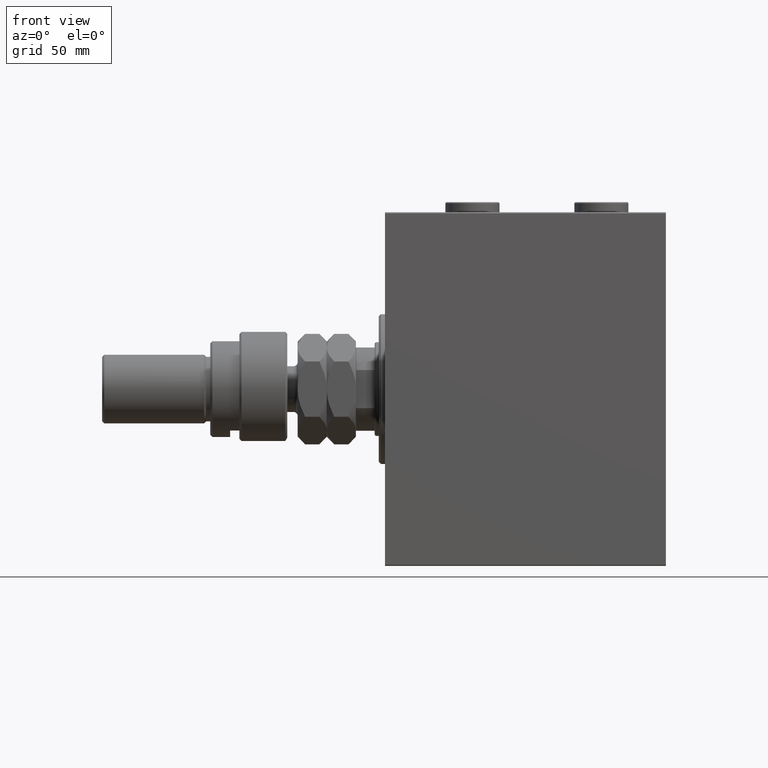
[diagram: clean part render]
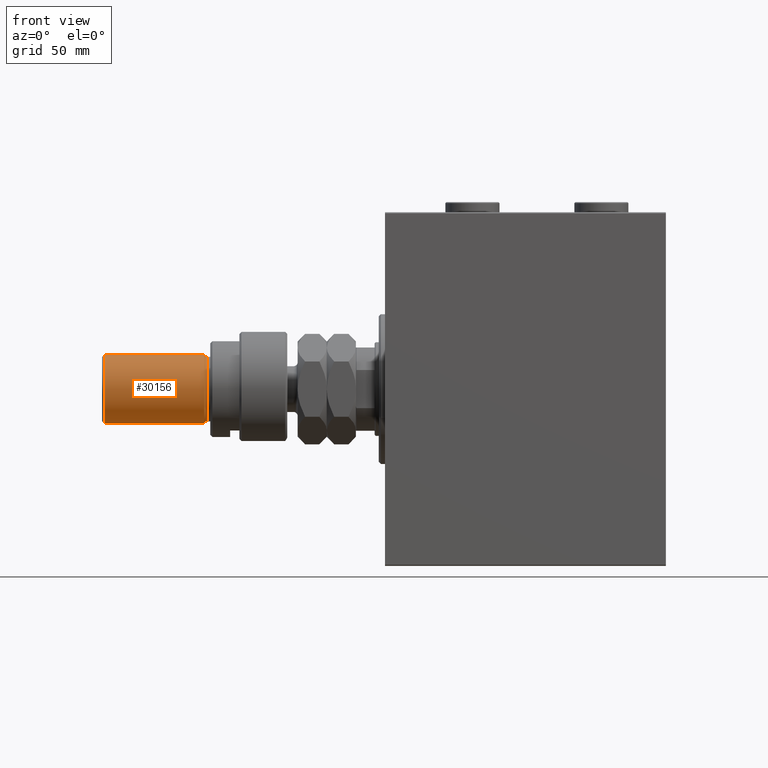
[diagram: same view with one face highlighted and labeled with its STEP entity id]
A machine part, front view. The second image highlights one B-rep face of the part: STEP entity #30156.
In plain terms, the highlighted cylindrical surface (edge-blend (fillet) strip) has radius 16.5 mm, axis along (1, -0, -0).
Its self-contained STEP definition (entity closure, byte-faithful):
#80 = CARTESIAN_POINT ( 'NONE',  ( 16.50000000000000000, 2.020667218593133100E-15, 88.00000000000001421 ) ) ;
#2913 = DIRECTION ( 'NONE',  ( 1.000000000000000000, 0.000000000000000000, 0.000000000000000000 ) ) ;
#3524 = VERTEX_POINT ( 'NONE', #8501 ) ;
#6610 = DIRECTION ( 'NONE',  ( -1.000000000000000000, 0.000000000000000000, 0.000000000000000000 ) ) ;
#6787 = CARTESIAN_POINT ( 'NONE',  ( 0.000000000000000000, 0.000000000000000000, 88.00000000000001421 ) ) ;
#8162 = ORIENTED_EDGE ( 'NONE', *, *, #43486, .T. ) ;
#8501 = CARTESIAN_POINT ( 'NONE',  ( 16.50000000000000000, 2.020667218593133100E-15, 39.99999999999998579 ) ) ;
#8903 = VECTOR ( 'NONE', #42962, 1000.000000000000000 ) ;
#10191 = DIRECTION ( 'NONE',  ( 0.000000000000000000, 0.000000000000000000, -1.000000000000000000 ) ) ;
#11410 = CARTESIAN_POINT ( 'NONE',  ( -16.50000000000000000, 0.000000000000000000, 39.99999999999998579 ) ) ;
#12957 = VERTEX_POINT ( 'NONE', #11410 ) ;
#13478 = EDGE_CURVE ( 'NONE', #12957, #3524, #36125, .T. ) ;
#13901 = CARTESIAN_POINT ( 'NONE',  ( 0.000000000000000000, 0.000000000000000000, 89.00000000000000000 ) ) ;
#14053 = AXIS2_PLACEMENT_3D ( 'NONE', #13901, #21453, #6610 ) ;
#15182 = AXIS2_PLACEMENT_3D ( 'NONE', #18049, #32867, #22421 ) ;
#15187 = CARTESIAN_POINT ( 'NONE',  ( 16.50000000000000000, 2.020667218593133100E-15, 89.00000000000000000 ) ) ;
#15587 = AXIS2_PLACEMENT_3D ( 'NONE', #6787, #10191, #2913 ) ;
#15624 = VERTEX_POINT ( 'NONE', #80 ) ;
#18049 = CARTESIAN_POINT ( 'NONE',  ( 0.000000000000000000, 0.000000000000000000, 39.99999999999998579 ) ) ;
#18590 = DIRECTION ( 'NONE',  ( -0.000000000000000000, -0.000000000000000000, -1.000000000000000000 ) ) ;
#20382 = CARTESIAN_POINT ( 'NONE',  ( -16.50000000000000000, 0.000000000000000000, 89.00000000000000000 ) ) ;
#20944 = ORIENTED_EDGE ( 'NONE', *, *, #42757, .F. ) ;
#21204 = FACE_OUTER_BOUND ( 'NONE', #27723, .T. ) ;
#21453 = DIRECTION ( 'NONE',  ( -0.000000000000000000, -0.000000000000000000, -1.000000000000000000 ) ) ;
#22421 = DIRECTION ( 'NONE',  ( 1.000000000000000000, 0.000000000000000000, 0.000000000000000000 ) ) ;
#22965 = LINE ( 'NONE', #15187, #39901 ) ;
#27723 = EDGE_LOOP ( 'NONE', ( #20944, #38477, #8162, #33879 ) ) ;
#29233 = EDGE_CURVE ( 'NONE', #15624, #30589, #41161, .T. ) ;
#30156 = ADVANCED_FACE ( 'NONE', ( #21204 ), #36019, .T. ) ;
#30589 = VERTEX_POINT ( 'NONE', #38763 ) ;
#32867 = DIRECTION ( 'NONE',  ( -0.000000000000000000, -0.000000000000000000, 1.000000000000000000 ) ) ;
#33879 = ORIENTED_EDGE ( 'NONE', *, *, #13478, .T. ) ;
#36019 = CYLINDRICAL_SURFACE ( 'NONE', #14053, 16.50000000000000000 ) ;
#36125 = CIRCLE ( 'NONE', #15182, 16.50000000000000000 ) ;
#38477 = ORIENTED_EDGE ( 'NONE', *, *, #29233, .T. ) ;
#38763 = CARTESIAN_POINT ( 'NONE',  ( -16.50000000000000000, 0.000000000000000000, 88.00000000000001421 ) ) ;
#39901 = VECTOR ( 'NONE', #18590, 1000.000000000000000 ) ;
#41161 = CIRCLE ( 'NONE', #15587, 16.50000000000000000 ) ;
#42757 = EDGE_CURVE ( 'NONE', #15624, #3524, #22965, .T. ) ;
#42962 = DIRECTION ( 'NONE',  ( -0.000000000000000000, -0.000000000000000000, -1.000000000000000000 ) ) ;
#43486 = EDGE_CURVE ( 'NONE', #30589, #12957, #43688, .T. ) ;
#43688 = LINE ( 'NONE', #20382, #8903 ) ;